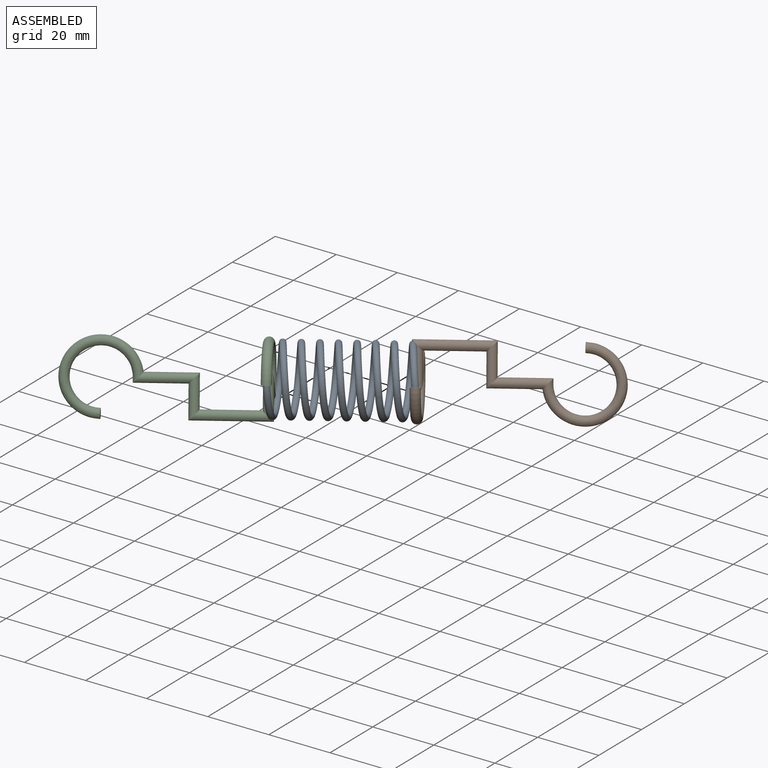
[diagram: assembled view]
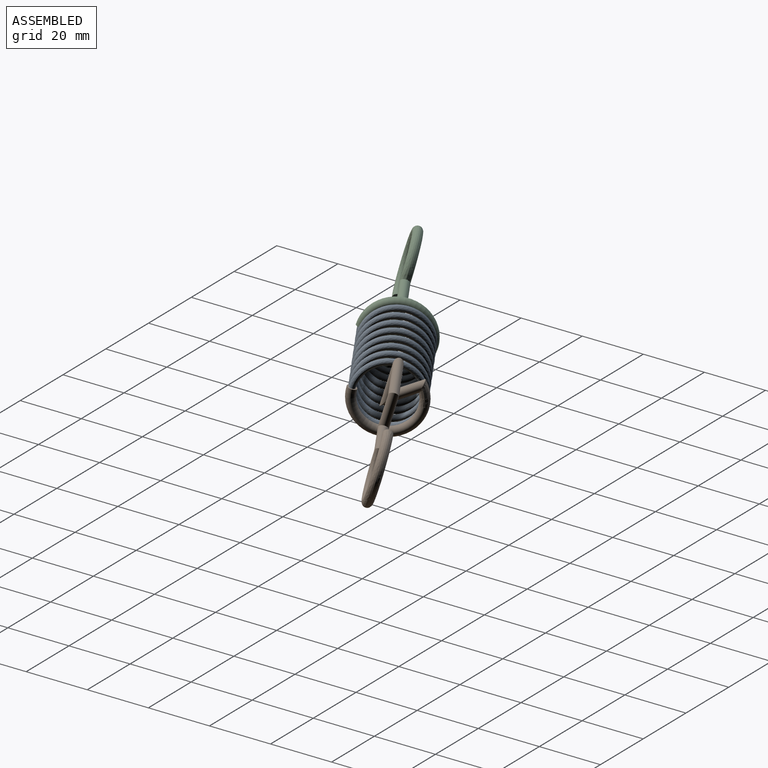
[diagram: assembled view, second angle]
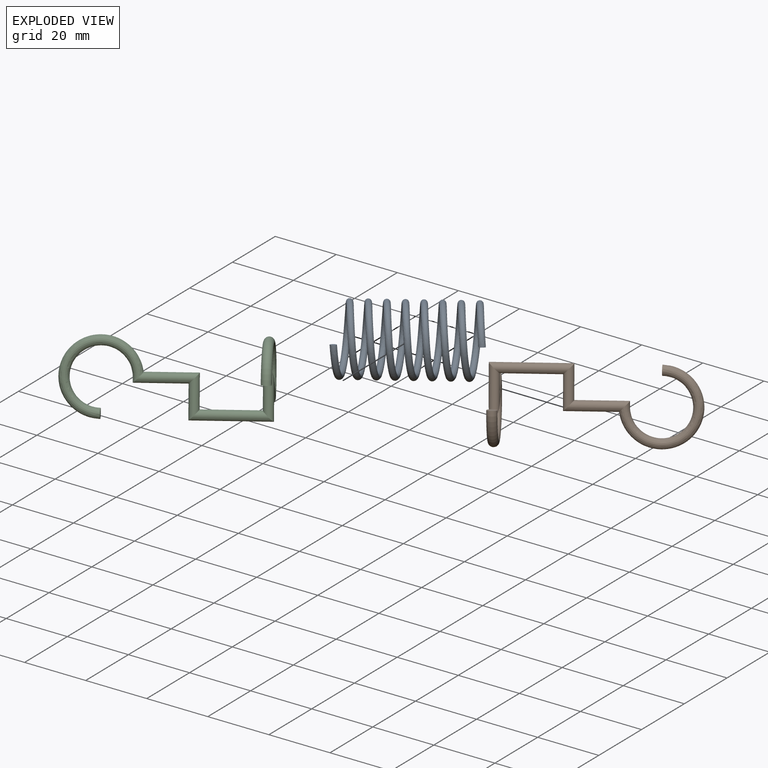
[diagram: exploded view]
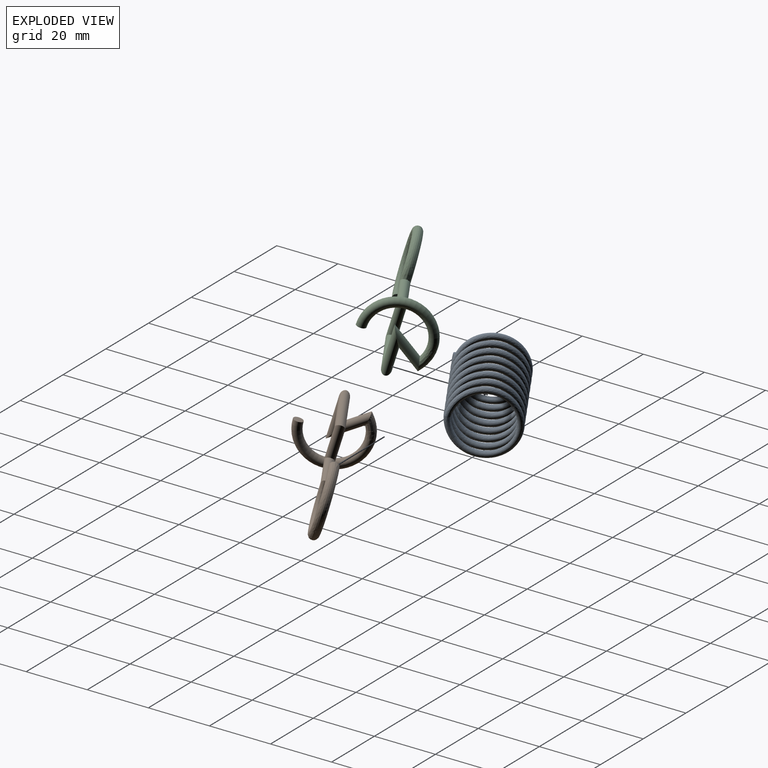
[diagram: exploded view, second angle]
ASSEMBLY  parts=3 mates=2
PART A: 3 faces, bbox 42x24x27.7 mm
  f0: plane 2x2mm, normal (0,0,-1), area 3.1mm2, adj f2
  f1: plane 2x2mm, normal (0,0,1), area 3.1mm2, adj f2
  f2: bspline ~42x27.7mm, area 3171mm2, adj f0,f1
PART B: 10 faces, bbox 25.3x61.7x26.7 mm
  f0: plane 3.42x3.42mm, normal (0,1,-0.01), area 7.1mm2, adj f2
  f1: plane 3x3mm, normal (0,0,-1), area 7.1mm2, adj f8
  f2: bspline ~26.25x26.25mm, area 442.6mm2, adj f0,f3
  f3: cylinder r=1.5mm len=18mm, axis (0,-1,0), area 141.1mm2, adj f2,f4
  f4: cylinder r=1.5mm len=13mm, axis (0,0,1), area 93.3mm2, adj f3,f5
  f5: cylinder r=1.5mm len=23mm, axis (0,-1,0), area 188mm2, adj f4,f6
  f6: cylinder r=1.5mm len=14.55mm, axis (0,0,-1), area 93.3mm2, adj f5,f7
  f7: cylinder r=1.5mm len=13.36mm, axis (0.79,0,0.61), area 92mm2, adj f6,f9
  f8: torus R=10mm, axis (0,-1,0), area 296.1mm2, adj f1,f9
  f9: bspline ~8.4x6mm, area 60.4mm2, adj f7,f8
PART C: same geometry as B
PLACE A rot(axis=(-0.44,-0.14,0.89),35.1deg) t=(-17.77,-9.07,-0.48)mm fixed
PLACE B rot(axis=(0.87,-0.49,0.12),172.8deg) t=(16.35,11.83,-0.04)mm
PLACE C rot(axis=(-0.13,-0.25,-0.96),60.5deg) t=(-17.76,-9.06,-0.48)mm
MATE fastened A.f0 <-> B.f1  axis (0.15,-0.23,-0.96) through (21.35,3.62,2.7)mm
MATE fastened A.f1 <-> C.f1  axis (-0.15,0.23,0.96) through (-12.76,-17.27,2.26)mm
